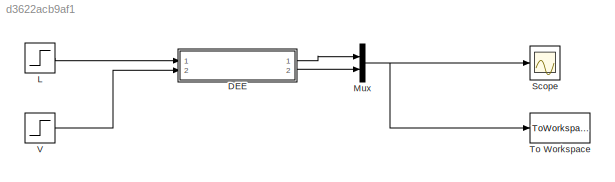
MODEL slx_d3622acb9af1
KIND model
CONFIG AbsTol = auto
CONFIG EnableMultiTasking = off
CONFIG FixedStep = auto
CONFIG MaxStep = auto
CONFIG MinStep = auto
CONFIG RelTol = 1e-3
CONFIG SampleTimeConstraint = Unconstrained
CONFIG Solver = VariableStepAuto
CONFIG SolverName = VariableStepAuto
CONFIG StartTime = 0.0
CONFIG StopTime = 20
WORKSPACE source: MATLAB code (in-file)
WORKSPACE L = 80
WORKSPACE V = 100
WORKSPACE M = 20
WORKSPACE a = 0.5
WORKSPACE zf = 0.1
WORKSPACE x10 = (V^2*a*zf)/(V^2*a^2 + L^2 + V*a*L)  (= 0.0387596899225)
WORKSPACE x20 = (L/(V*a) + 1)*x10  (= 0.100775193798)
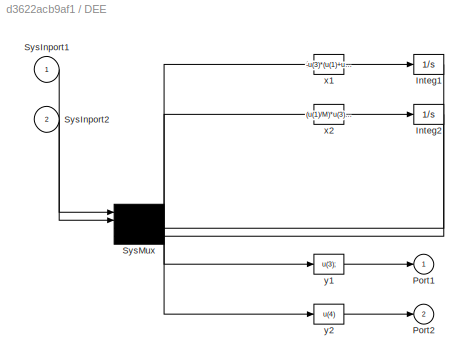
BLOCK [SubSystem] DEE
  OpenFcn = diffeqed
  Ports = [2, 2]
  RequestExecContextInheritance = off
BLOCK [Integrator] DEE/Integ1
  InitialCondition = x10
  Ports = [1, 1]
BLOCK [Integrator] DEE/Integ2
  InitialCondition = x20
  Ports = [1, 1]
BLOCK [Outport] DEE/Port1
  IconDisplay = Port number
BLOCK [Outport] DEE/Port2
  IconDisplay = Port number
  Port = 2
BLOCK [Inport] DEE/SysInport1
  IconDisplay = Port number
BLOCK [Inport] DEE/SysInport2
  IconDisplay = Port number
  Port = 2
BLOCK [Mux] DEE/SysMux
  Ports = [4, 1]
BLOCK [Fcn] DEE/x1
  Expr = -u(3)*(u(1)+u(2)*a)/M + u(4)*u(2)*a/M;
BLOCK [Fcn] DEE/x2
  Expr = (u(1)/M)*u(3) - u(4)*(u(1)+u(2)*a)/M + (u(2)/M)*zf
BLOCK [Fcn] DEE/y1
  Expr = u(3);
BLOCK [Fcn] DEE/y2
  Expr = u(4)
BLOCK [Step] L
  After = 1.05*L
  Before = L
  SampleTime = 0
  Time = 5
BLOCK [Mux] Mux
  DisplayOption = bar
  Inputs = 2
  Ports = [2, 1]
BLOCK [Scope] Scope 
  Floating = off
  NumInputPorts = 1
  Ports = [1]
  ScopeSpecificationString = Simulink.scopes.TimeScopeBlockCfg('CurrentConfiguration', extmgr.ConfigurationSet(extmgr.Configuration('Core','General UI',true),extmgr.Configuration('Core','Source UI',true),extmgr.Configuration('Sources','WiredSimulink',true),extmgr.Configuration('Visuals','Time Domain',true,'SerializedDisplays',{struct('MinYLimReal','-0.04049','MaxYLimReal','0.1564','YLabelReal','','MinYLimMag','0.00000','MaxYL...<+1377ch>
BLOCK [ToWorkspace] To Workspace
  FixptAsFi = on
  MaxDataPoints = inf
  Ports = [1]
  SampleTime = -1
  Save2DSignal = 3-D array (concatenate along third dimension)
  SaveFormat = Timeseries
  VariableName = simout
BLOCK [Step] V
  After = V
  Before = V
  SampleTime = 0
LINE DEE/Integ1:1 -> DEE/SysMux:3
LINE DEE/Integ2:1 -> DEE/SysMux:4
LINE DEE/SysInport1:1 -> DEE/SysMux:1
LINE DEE/SysInport2:1 -> DEE/SysMux:2
NET DEE/SysMux:1 -> DEE/x1:1, DEE/x2:1, DEE/y1:1, DEE/y2:1
LINE DEE/x1:1 -> DEE/Integ1:1
LINE DEE/x2:1 -> DEE/Integ2:1
LINE DEE/y1:1 -> DEE/Port1:1
LINE DEE/y2:1 -> DEE/Port2:1
LINE DEE:1 -> Mux:1
LINE DEE:2 -> Mux:2
LINE L:1 -> DEE:1
NET Mux:1 -> Scope :1, To Workspace:1
LINE V:1 -> DEE:2
note: NET lines group one-source signal fan-out (src -> all destinations, sorted); 1:1 wires keep LINE
